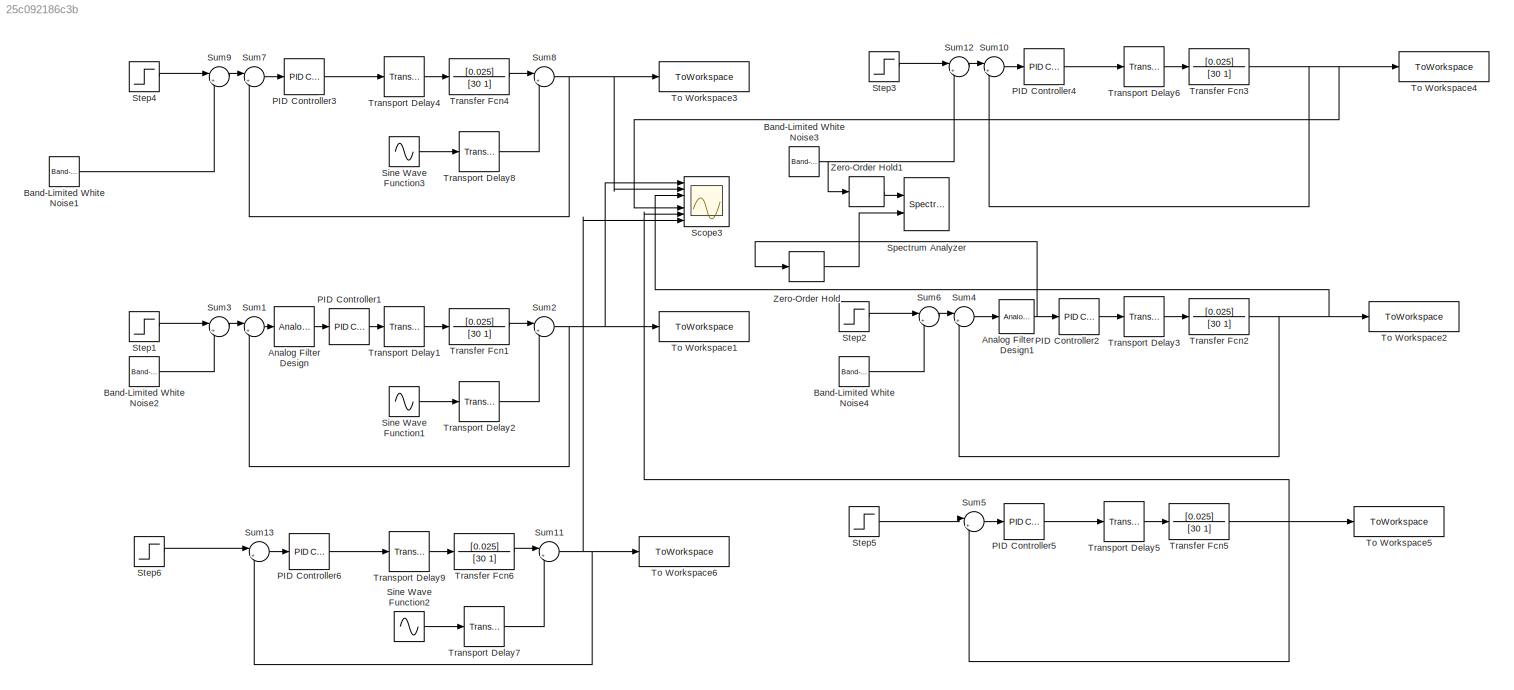
MODEL slx_25c092186c3b
KIND model
CONFIG AbsTol = auto
CONFIG EnableMultiTasking = off
CONFIG FixedStep = auto
CONFIG MaxStep = auto
CONFIG MinStep = auto
CONFIG RelTol = 1e-3
CONFIG SampleTimeConstraint = Unconstrained
CONFIG SolverName = VariableStepAuto
CONFIG StartTime = 0.0
CONFIG StopTime = 300
BLOCK [Reference] Analog Filter Design  REF=dsparch4/Analog
Filter Design
  Ports = [1, 1]
  SourceBlock = dsparch4/Analog\nFilter Design
  SourceProductBaseCode = DS
  SourceType = Analog Filter Design
BLOCK [Reference] Analog Filter Design1  REF=dsparch4/Analog
Filter Design
  Ports = [1, 1]
  SourceBlock = dsparch4/Analog\nFilter Design
  SourceProductBaseCode = DS
  SourceType = Analog Filter Design
BLOCK [Reference] Band-Limited White Noise1  REF=simulink/Sources/Band-Limited
White Noise
  Ports = [0, 1]
  SourceBlock = simulink/Sources/Band-Limited\nWhite Noise
  SourceProductBaseCode = SL
  SourceType = Band-Limited White Noise.
BLOCK [Reference] Band-Limited White Noise2  REF=simulink/Sources/Band-Limited
White Noise
  Ports = [0, 1]
  SourceBlock = simulink/Sources/Band-Limited\nWhite Noise
  SourceProductBaseCode = SL
  SourceType = Band-Limited White Noise.
BLOCK [Reference] Band-Limited White Noise3  REF=simulink/Sources/Band-Limited
White Noise
  Ports = [0, 1]
  SourceBlock = simulink/Sources/Band-Limited\nWhite Noise
  SourceProductBaseCode = SL
  SourceType = Band-Limited White Noise.
BLOCK [Reference] Band-Limited White Noise4  REF=simulink/Sources/Band-Limited
White Noise
  Ports = [0, 1]
  SourceBlock = simulink/Sources/Band-Limited\nWhite Noise
  SourceProductBaseCode = SL
  SourceType = Band-Limited White Noise.
BLOCK [Reference] PID Controller1  REF=pid_lib/PID Controller
  Ports = [1, 1]
  SourceBlock = pid_lib/PID Controller
  SourceProductBaseCode = SL
  SourceType = PID 1dof
BLOCK [Reference] PID Controller2  REF=pid_lib/PID Controller
  Ports = [1, 1]
  SourceBlock = pid_lib/PID Controller
  SourceProductBaseCode = SL
  SourceType = PID 1dof
BLOCK [Reference] PID Controller3  REF=pid_lib/PID Controller
  Ports = [1, 1]
  SourceBlock = pid_lib/PID Controller
  SourceProductBaseCode = SL
  SourceType = PID 1dof
BLOCK [Reference] PID Controller4  REF=pid_lib/PID Controller
  Ports = [1, 1]
  SourceBlock = pid_lib/PID Controller
  SourceProductBaseCode = SL
  SourceType = PID 1dof
BLOCK [Reference] PID Controller5  REF=pid_lib/PID Controller
  Ports = [1, 1]
  SourceBlock = pid_lib/PID Controller
  SourceProductBaseCode = SL
  SourceType = PID 1dof
BLOCK [Reference] PID Controller6  REF=pid_lib/PID Controller
  Ports = [1, 1]
  SourceBlock = pid_lib/PID Controller
  SourceProductBaseCode = SL
  SourceType = PID 1dof
BLOCK [Scope] Scope3
  Floating = off
  NumInputPorts = 7
  Ports = [7]
  ScopeSpecificationString = Simulink.scopes.TimeScopeBlockCfg('CurrentConfiguration', extmgr.ConfigurationSet(extmgr.Configuration('Core','General UI',true),extmgr.Configuration('Core','Source UI',true),extmgr.Configuration('Sources','WiredSimulink',true,'DataLoggingVariableName','ScopeData2'),extmgr.Configuration('Visuals','Time Domain',true,'SerializedDisplays',{struct('MinYLimReal','-0.30085','MaxYLimReal','2.487','YLabel...<+1508ch>
BLOCK [Sin] Sine Wave Function1
  Amplitude = 0.03
  Frequency = 8
  Ports = [0, 1]
  SampleTime = 0
BLOCK [Sin] Sine Wave Function2
  Amplitude = 0.03
  Frequency = 8
  Ports = [0, 1]
  SampleTime = 0
BLOCK [Sin] Sine Wave Function3
  Amplitude = 0.03
  Frequency = 8
  Ports = [0, 1]
  SampleTime = 0
BLOCK [SpectrumAnalyzer] Spectrum Analyzer
  NumInputPorts = 2
  Ports = [2]
  ScopeSpecificationString = spbscopes.SpectrumAnalyzerBlockCfg('CurrentConfiguration', extmgr.ConfigurationSet(extmgr.Configuration('Core','General UI',true),extmgr.Configuration('Core','Source UI',true),extmgr.Configuration('Sources','WiredSimulink',true),extmgr.Configuration('Visuals','Spectrum',true,'AxesProperties',struct('Color',{[0 0 0],[0 0 0]},'XColor',{[0.686274509803922 0.686274509803922 0.686274509803922],[0.68627...<+3049ch>
BLOCK [Step] Step1
  After = 2
  SampleTime = 0.01
  Time = 0
BLOCK [Step] Step2
  After = 2
  SampleTime = 0.01
  Time = 0
BLOCK [Step] Step3
  After = 2
  SampleTime = 0.01
  Time = 0
BLOCK [Step] Step4
  After = 2
  SampleTime = 0.01
  Time = 0
BLOCK [Step] Step5
  After = 2
  SampleTime = 0.01
  Time = 0
BLOCK [Step] Step6
  After = 2
  SampleTime = 0.01
  Time = 0
BLOCK [Sum] Sum1
  Inputs = |+-
  Ports = [2, 1]
BLOCK [Sum] Sum10
  Inputs = |+-
  Ports = [2, 1]
BLOCK [Sum] Sum11
  Inputs = |++
  Ports = [2, 1]
BLOCK [Sum] Sum12
  Inputs = |++
  NameLocation = top
  Ports = [2, 1]
BLOCK [Sum] Sum13
  Inputs = |+-
  Ports = [2, 1]
BLOCK [Sum] Sum2
  Inputs = |++
  Ports = [2, 1]
BLOCK [Sum] Sum3
  Inputs = |++
  NameLocation = top
  Ports = [2, 1]
BLOCK [Sum] Sum4
  Inputs = |+-
  Ports = [2, 1]
BLOCK [Sum] Sum5
  Inputs = |+-
  Ports = [2, 1]
BLOCK [Sum] Sum6
  Inputs = |++
  NameLocation = top
  Ports = [2, 1]
BLOCK [Sum] Sum7
  Inputs = |+-
  Ports = [2, 1]
BLOCK [Sum] Sum8
  Inputs = |++
  Ports = [2, 1]
BLOCK [Sum] Sum9
  Inputs = |++
  NameLocation = top
  Ports = [2, 1]
BLOCK [ToWorkspace] To Workspace1
  FixptAsFi = on
  MaxDataPoints = inf
  Ports = [1]
  SampleTime = -1
  SaveFormat = Structure With Time
  VariableName = simout2
BLOCK [ToWorkspace] To Workspace2
  FixptAsFi = on
  MaxDataPoints = inf
  Ports = [1]
  SampleTime = -1
  SaveFormat = Structure With Time
  VariableName = simout3
BLOCK [ToWorkspace] To Workspace3
  FixptAsFi = on
  MaxDataPoints = inf
  Ports = [1]
  SampleTime = -1
  SaveFormat = Structure With Time
  VariableName = simout
BLOCK [ToWorkspace] To Workspace4
  FixptAsFi = on
  MaxDataPoints = inf
  Ports = [1]
  SampleTime = -1
  SaveFormat = Structure With Time
  VariableName = simout1
BLOCK [ToWorkspace] To Workspace5
  FixptAsFi = on
  MaxDataPoints = inf
  Ports = [1]
  SampleTime = -1
  SaveFormat = Structure With Time
  VariableName = simout4
BLOCK [ToWorkspace] To Workspace6
  FixptAsFi = on
  MaxDataPoints = inf
  Ports = [1]
  SampleTime = -1
  SaveFormat = Structure With Time
  VariableName = simout5
BLOCK [TransferFcn] Transfer Fcn1
  Denominator = [30 1]
  Numerator = [0.025]
BLOCK [TransferFcn] Transfer Fcn2
  Denominator = [30 1]
  Numerator = [0.025]
BLOCK [TransferFcn] Transfer Fcn3
  Denominator = [30 1]
  Numerator = [0.025]
BLOCK [TransferFcn] Transfer Fcn4
  Denominator = [30 1]
  Numerator = [0.025]
BLOCK [TransferFcn] Transfer Fcn5
  Denominator = [30 1]
  Numerator = [0.025]
BLOCK [TransferFcn] Transfer Fcn6
  Denominator = [30 1]
  Numerator = [0.025]
BLOCK [TransportDelay] Transport Delay1
  DelayTime = 5
  Ports = [1, 1]
BLOCK [TransportDelay] Transport Delay2
  DelayTime = 5
  Ports = [1, 1]
BLOCK [TransportDelay] Transport Delay3
  DelayTime = 5
  Ports = [1, 1]
BLOCK [TransportDelay] Transport Delay4
  DelayTime = 5
  Ports = [1, 1]
BLOCK [TransportDelay] Transport Delay5
  DelayTime = 5
  Ports = [1, 1]
BLOCK [TransportDelay] Transport Delay6
  DelayTime = 5
  Ports = [1, 1]
BLOCK [TransportDelay] Transport Delay7
  DelayTime = 5
  Ports = [1, 1]
BLOCK [TransportDelay] Transport Delay8
  DelayTime = 5
  Ports = [1, 1]
BLOCK [TransportDelay] Transport Delay9
  DelayTime = 5
  Ports = [1, 1]
BLOCK [ZeroOrderHold] Zero-Order Hold
  SampleTime = -1
BLOCK [ZeroOrderHold] Zero-Order Hold1
  SampleTime = -1
NET Analog Filter Design1:1 -> PID Controller2:1, Zero-Order Hold:1
LINE Analog Filter Design:1 -> PID Controller1:1
LINE Band-Limited White Noise1:1 -> Sum9:2
LINE Band-Limited White Noise2:1 -> Sum3:2
NET Band-Limited White Noise3:1 -> Sum12:2, Zero-Order Hold1:1
LINE Band-Limited White Noise4:1 -> Sum6:2
LINE PID Controller1:1 -> Transport Delay1:1
LINE PID Controller2:1 -> Transport Delay3:1
LINE PID Controller3:1 -> Transport Delay4:1
LINE PID Controller4:1 -> Transport Delay6:1
LINE PID Controller5:1 -> Transport Delay5:1
LINE PID Controller6:1 -> Transport Delay9:1
LINE Sine Wave Function1:1 -> Transport Delay2:1
LINE Sine Wave Function2:1 -> Transport Delay7:1
LINE Sine Wave Function3:1 -> Transport Delay8:1
LINE Step1:1 -> Sum3:1
LINE Step2:1 -> Sum6:1
LINE Step3:1 -> Sum12:1
LINE Step4:1 -> Sum9:1
LINE Step5:1 -> Sum5:1
LINE Step6:1 -> Sum13:1
LINE Sum10:1 -> PID Controller4:1
NET Sum11:1 -> Scope3:7, Sum13:2, To Workspace6:1
LINE Sum12:1 -> Sum10:1
LINE Sum13:1 -> PID Controller6:1
LINE Sum1:1 -> Analog Filter Design:1
NET Sum2:1 -> Scope3:1, Sum1:2, To Workspace1:1
LINE Sum3:1 -> Sum1:1
LINE Sum4:1 -> Analog Filter Design1:1
LINE Sum5:1 -> PID Controller5:1
LINE Sum6:1 -> Sum4:1
LINE Sum7:1 -> PID Controller3:1
NET Sum8:1 -> Scope3:2, Sum7:2, To Workspace3:1
LINE Sum9:1 -> Sum7:1
LINE Transfer Fcn1:1 -> Sum2:1
NET Transfer Fcn2:1 -> Scope3:3, Sum4:2, To Workspace2:1
NET Transfer Fcn3:1 -> Scope3:5, Sum10:2, To Workspace4:1
LINE Transfer Fcn4:1 -> Sum8:1
NET Transfer Fcn5:1 -> Scope3:6, Sum5:2, To Workspace5:1
LINE Transfer Fcn6:1 -> Sum11:1
LINE Transport Delay1:1 -> Transfer Fcn1:1
LINE Transport Delay2:1 -> Sum2:2
LINE Transport Delay3:1 -> Transfer Fcn2:1
LINE Transport Delay4:1 -> Transfer Fcn4:1
LINE Transport Delay5:1 -> Transfer Fcn5:1
LINE Transport Delay6:1 -> Transfer Fcn3:1
LINE Transport Delay7:1 -> Sum11:2
LINE Transport Delay8:1 -> Sum8:2
LINE Transport Delay9:1 -> Transfer Fcn6:1
LINE Zero-Order Hold1:1 -> Spectrum Analyzer:1
LINE Zero-Order Hold:1 -> Spectrum Analyzer:2
note: NET lines group one-source signal fan-out (src -> all destinations, sorted); 1:1 wires keep LINE
